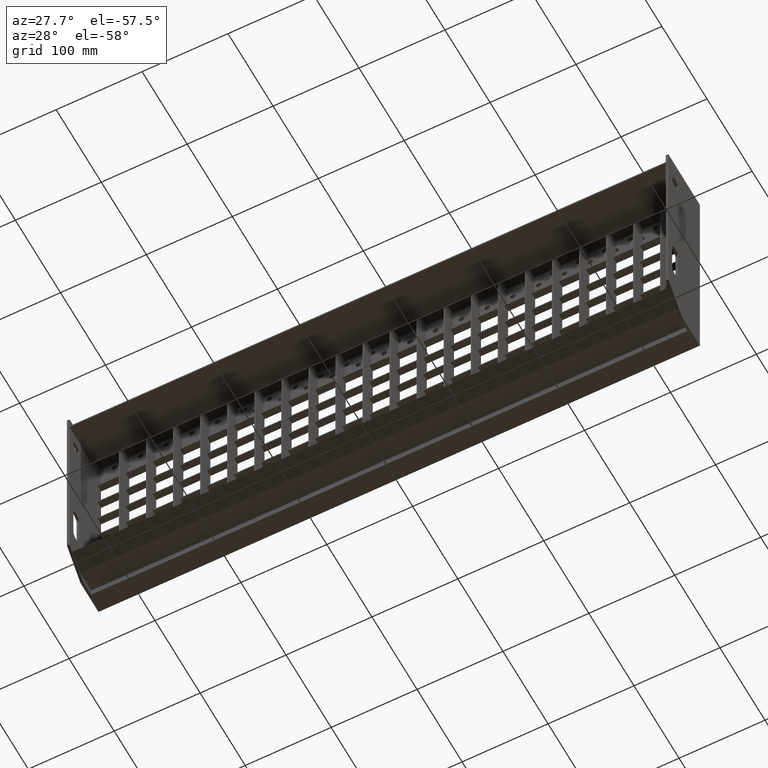
[diagram: clean part render]
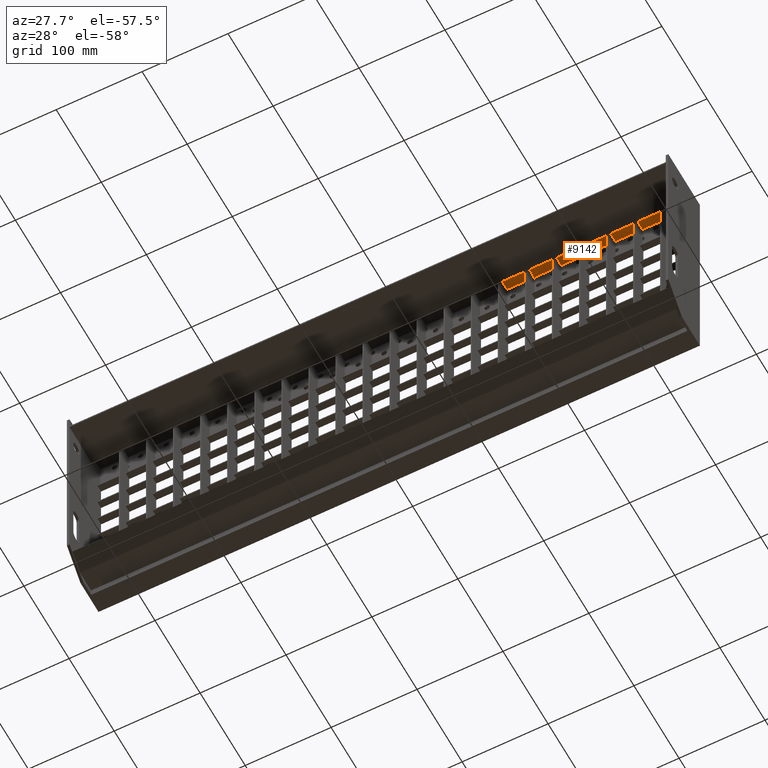
[diagram: same view with one face highlighted and labeled with its STEP entity id]
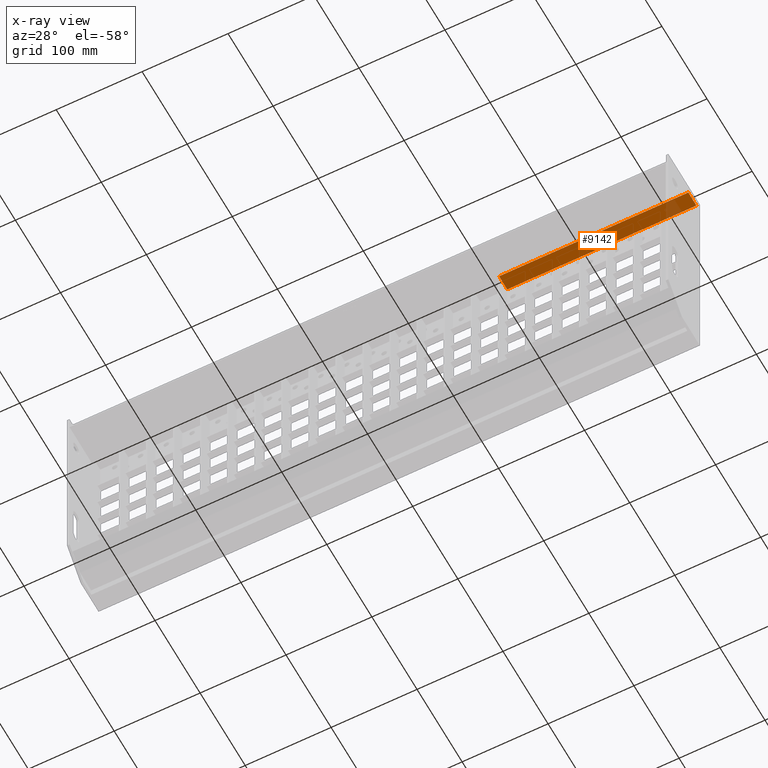
[diagram: x-ray of the same camera — body ghosted, the highlighted face saturated]
A machine part, auxiliary view. The second image highlights one B-rep face of the part: STEP entity #9142.
The next image is the same camera in x-ray: the body ghosted, the highlighted face saturated — about 6% of this face is hidden behind the body in this view.
In plain terms, the highlighted planar face has unit normal (0, 0, 1).
Its self-contained STEP definition (entity closure, byte-faithful):
#496 = CARTESIAN_POINT ( 'NONE',  ( 126.7500000000000000, 50.00000000000000000, -1.999999999999993600 ) ) ;
#618 = ORIENTED_EDGE ( 'NONE', *, *, #12525, .T. ) ;
#788 = ORIENTED_EDGE ( 'NONE', *, *, #9372, .F. ) ;
#1287 = EDGE_LOOP ( 'NONE', ( #12114, #788, #16538, #618 ) ) ;
#1792 = LINE ( 'NONE', #18573, #10743 ) ;
#2654 = VECTOR ( 'NONE', #19473, 1000.000000000000000 ) ;
#2887 = VERTEX_POINT ( 'NONE', #496 ) ;
#4060 = CARTESIAN_POINT ( 'NONE',  ( 126.7500000000000000, 68.00000000000000000, -1.999999999999991300 ) ) ;
#7742 = LINE ( 'NONE', #23597, #2654 ) ;
#8160 = VERTEX_POINT ( 'NONE', #13496 ) ;
#8314 = CARTESIAN_POINT ( 'NONE',  ( 347.0000000000000000, 68.00000000000000000, -2.000000000000001800 ) ) ;
#8950 = AXIS2_PLACEMENT_3D ( 'NONE', #11968, #16041, #17975 ) ;
#9142 = ADVANCED_FACE ( 'NONE', ( #15715 ), #12155, .F. ) ;
#9372 = EDGE_CURVE ( 'NONE', #14616, #2887, #7742, .T. ) ;
#10028 = DIRECTION ( 'NONE',  ( 1.000000000000000000, -0.0000000000000000000, -0.0000000000000000000 ) ) ;
#10118 = CARTESIAN_POINT ( 'NONE',  ( -423.1577310586389400, 50.00000000000011400, -1.999999999999997800 ) ) ;
#10743 = VECTOR ( 'NONE', #18762, 1000.000000000000000 ) ;
#11968 = CARTESIAN_POINT ( 'NONE',  ( -423.1577310586389400, 68.00000000000000000, -2.000000000000001800 ) ) ;
#12114 = ORIENTED_EDGE ( 'NONE', *, *, #13619, .F. ) ;
#12155 = PLANE ( 'NONE',  #8950 ) ;
#12525 = EDGE_CURVE ( 'NONE', #14897, #8160, #14177, .T. ) ;
#13496 = CARTESIAN_POINT ( 'NONE',  ( 347.0000000000000000, 50.00000000000011400, -1.999999999999997800 ) ) ;
#13619 = EDGE_CURVE ( 'NONE', #2887, #8160, #18253, .T. ) ;
#14177 = LINE ( 'NONE', #18290, #19252 ) ;
#14616 = VERTEX_POINT ( 'NONE', #4060 ) ;
#14897 = VERTEX_POINT ( 'NONE', #8314 ) ;
#15715 = FACE_OUTER_BOUND ( 'NONE', #1287, .T. ) ;
#16041 = DIRECTION ( 'NONE',  ( 0.0000000000000000000, 2.168404344971021900E-016, 1.000000000000000000 ) ) ;
#16538 = ORIENTED_EDGE ( 'NONE', *, *, #23708, .T. ) ;
#17975 = DIRECTION ( 'NONE',  ( 0.0000000000000000000, -1.000000000000000000, 2.168404344971021900E-016 ) ) ;
#18253 = LINE ( 'NONE', #10118, #25885 ) ;
#18290 = CARTESIAN_POINT ( 'NONE',  ( 347.0000000000000000, 68.00000000000000000, -2.000000000000001800 ) ) ;
#18573 = CARTESIAN_POINT ( 'NONE',  ( -423.1577310586389400, 68.00000000000000000, -2.000000000000001800 ) ) ;
#18762 = DIRECTION ( 'NONE',  ( 1.000000000000000000, -0.0000000000000000000, -0.0000000000000000000 ) ) ;
#19252 = VECTOR ( 'NONE', #20166, 1000.000000000000000 ) ;
#19473 = DIRECTION ( 'NONE',  ( 0.0000000000000000000, -1.000000000000000000, -1.204669080539449300E-016 ) ) ;
#20166 = DIRECTION ( 'NONE',  ( 0.0000000000000000000, -1.000000000000000000, 2.168404344971021900E-016 ) ) ;
#23597 = CARTESIAN_POINT ( 'NONE',  ( 126.7500000000000000, 68.00000000000000000, -1.999999999999991300 ) ) ;
#23708 = EDGE_CURVE ( 'NONE', #14616, #14897, #1792, .T. ) ;
#25885 = VECTOR ( 'NONE', #10028, 1000.000000000000000 ) ;